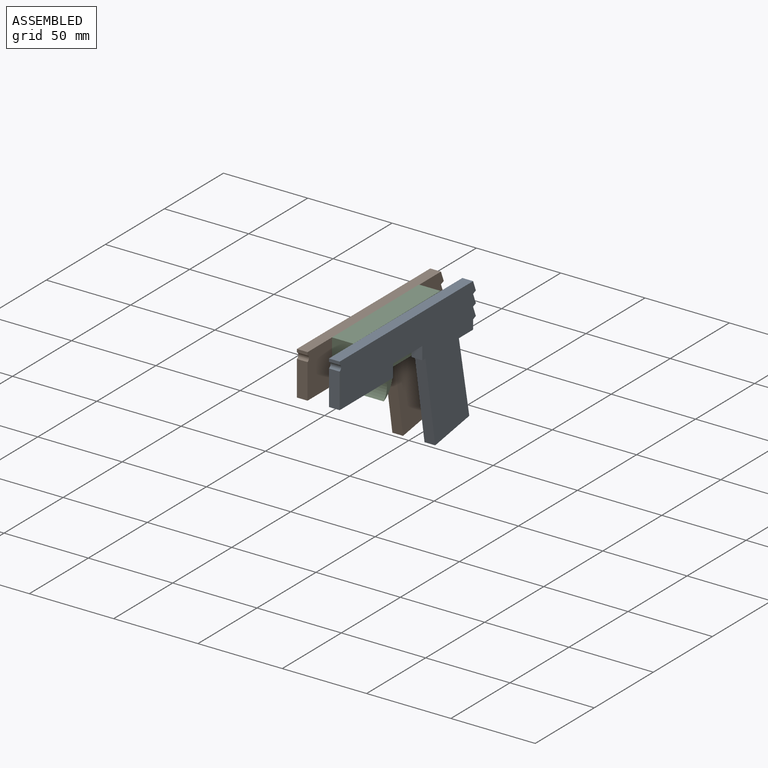
[diagram: assembled view]
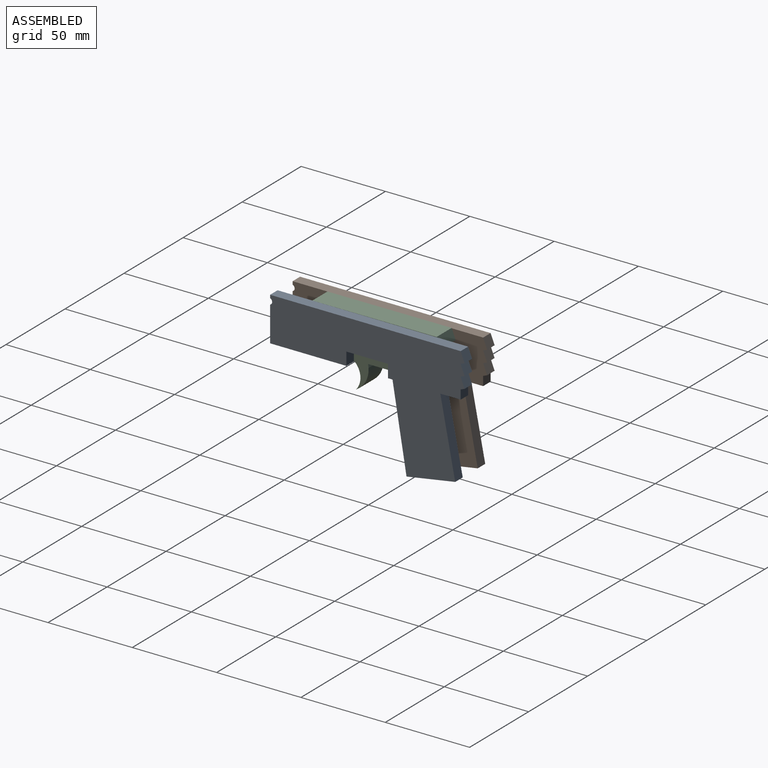
[diagram: assembled view, second angle]
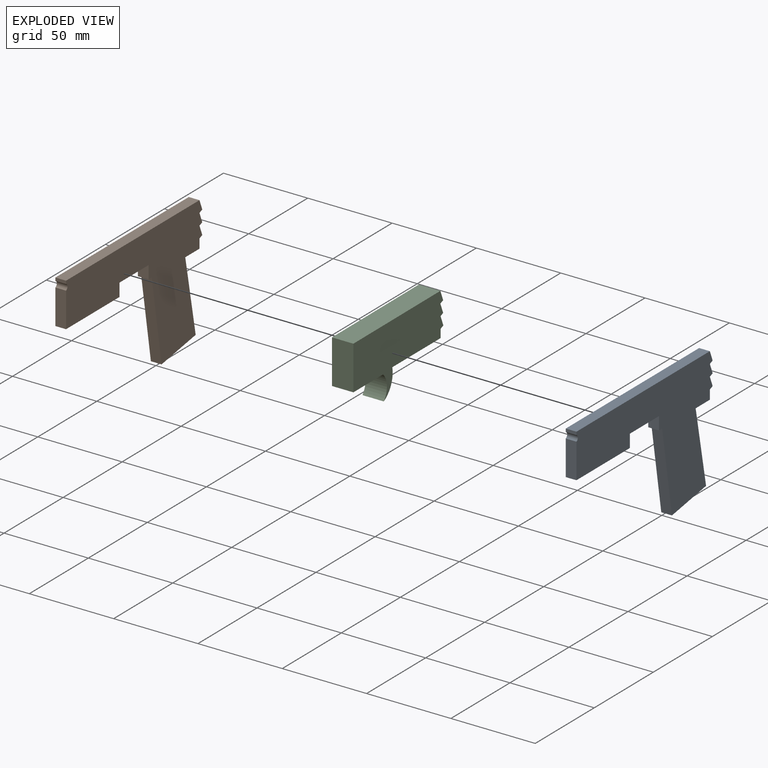
[diagram: exploded view]
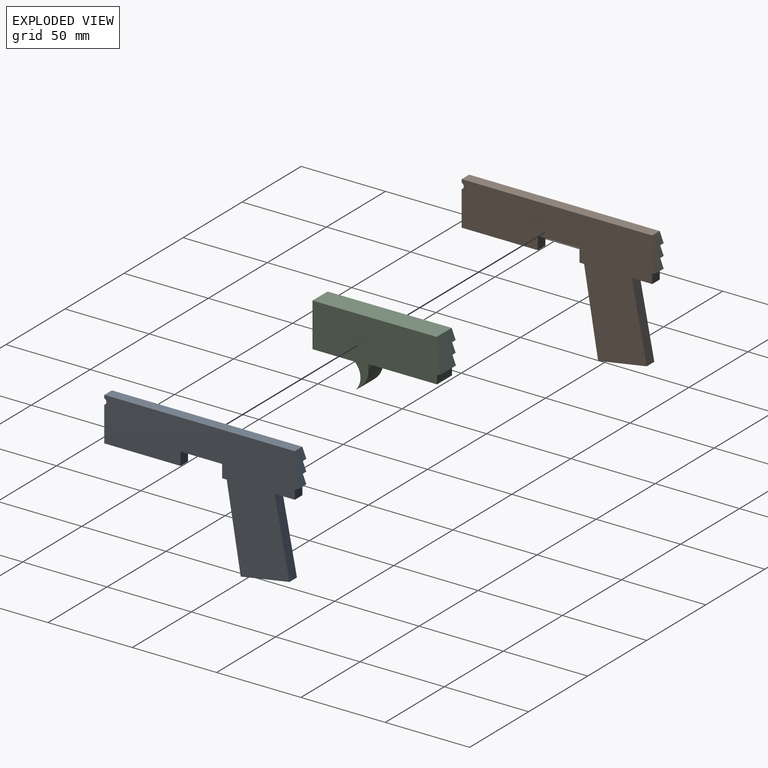
[diagram: exploded view, second angle]
ASSEMBLY  parts=3 mates=2
PART A: 22 faces, bbox 6.4x115.3x75.8 mm
  f0: plane 6.35x2.7mm, normal (0,0,-1), area 17.1mm2, adj f6,f17,f18,f19
  f1: plane 112.98x6.35mm, normal (0,0,1), area 717.4mm2, adj f2,f16,f17,f18
  f2: plane 6.35x1.84mm, normal (0,-1,0), area 11.7mm2, adj f1,f3,f17,f18
  f3: cylinder r=1.87mm len=6.35mm, axis (-1,0,0), area 28.8mm2, adj f2,f4,f17,f18
  f4: plane 20.66x6.35mm, normal (0,-1,0), area 131.2mm2, adj f3,f5,f17,f18
  f5: plane 45.21x6.35mm, normal (0,0,-1), area 287.1mm2, adj f4,f17,f18,f21
  f6: plane 49.76x8.31mm, normal (0,-0.99,-0.16), area 320.4mm2, adj f0,f7,f17,f18
  f7: plane 28.87x6.35mm, normal (0,0.16,-0.99), area 185.9mm2, adj f6,f8,f17,f18
  f8: plane 44.94x8.84mm, normal (0,0.98,0.19), area 290.8mm2, adj f7,f9,f17,f18
  f9: plane 12.05x6.35mm, normal (0,0,-1), area 76.5mm2, adj f8,f10,f17,f18
  f10: plane 6.35x5.49mm, normal (0,1,0), area 34.9mm2, adj f9,f11,f17,f18
  f11: plane 6.35x2.36mm, normal (0,0.37,-0.93), area 16.1mm2, adj f10,f12,f17,f18
  f12: plane 6.35x5.9mm, normal (0,0.93,0.37), area 40.3mm2, adj f11,f13,f17,f18
  f13: plane 6.35x2.36mm, normal (0,0.37,-0.93), area 16.1mm2, adj f12,f14,f17,f18
  f14: plane 6.35x5.9mm, normal (0,0.93,0.37), area 40.3mm2, adj f13,f15,f17,f18
  f15: plane 6.35x2.36mm, normal (0,0.37,-0.93), area 16.1mm2, adj f14,f16,f17,f18
  f16: plane 6.35x5.9mm, normal (0,0.93,0.37), area 40.3mm2, adj f1,f15,f17,f18
  f17: plane 115.34x75.77mm, normal (1,0,0), area 4145.4mm2, adj f0,f1,f2,f3,f4,f5,f6,f7
  f18: plane 115.34x75.77mm, normal (-1,0,0), area 4145.4mm2, adj f0,f1,f2,f3,f4,f5,f6,f7
  f19: plane 7.68x6.35mm, normal (0,-1,0), area 48.8mm2, adj f0,f17,f18,f20
  f20: plane 24.68x6.35mm, normal (0,0,-1), area 156.7mm2, adj f17,f18,f19,f21
  f21: plane 7.68x6.35mm, normal (0,1,0), area 48.8mm2, adj f5,f17,f18,f20
PART B: same geometry as A
PART C: 15 faces, bbox 76.2x12.7x41 mm
  f0: plane 12.7x2.18mm, normal (0.37,0,-0.93), area 29.8mm2, adj f1,f12,f13,f14
  f1: plane 12.7x5.9mm, normal (0.93,0,0.37), area 80.6mm2, adj f0,f2,f13,f14
  f2: plane 12.7x2.36mm, normal (0.37,0,-0.93), area 32.3mm2, adj f1,f3,f13,f14
  f3: plane 12.7x5.9mm, normal (0.93,0,0.37), area 80.6mm2, adj f2,f4,f13,f14
  f4: plane 73.66x12.7mm, normal (0,0,1), area 935.5mm2, adj f3,f5,f13,f14
  f5: plane 26.06x12.7mm, normal (-1,0,0), area 331mm2, adj f4,f6,f13,f14
  f6: plane 25.05x12.7mm, normal (0,0,-1), area 318.1mm2, adj f5,f7,f13,f14
  f7: cylinder r=10.5mm len=14.74mm, axis (0,1,0), area 207.9mm2, adj f6,f8,f13,f14
  f8: cylinder r=14.45mm len=15.61mm, axis (0,1,0), area 233.8mm2, adj f7,f9,f13,f14
  f9: plane 40.85x12.7mm, normal (0,0,-1), area 518.8mm2, adj f8,f10,f13,f14
  f10: plane 12.7x4.94mm, normal (1,0,0), area 62.8mm2, adj f9,f11,f13,f14
  f11: plane 12.7x2.36mm, normal (0.37,0,-0.93), area 32.3mm2, adj f10,f12,f13,f14
  f12: plane 12.7x5.9mm, normal (0.93,0,0.37), area 80.6mm2, adj f0,f11,f13,f14
  f13: plane 76.2x41mm, normal (0,-1,0), area 1975.6mm2, adj f0,f1,f2,f3,f4,f5,f6,f7
  f14: plane 76.2x41mm, normal (0,1,0), area 1975.6mm2, adj f0,f1,f2,f3,f4,f5,f6,f7
PLACE A t=(-40.01,-44.11,16.24)mm
PLACE B t=(-59.06,-44.11,16.24)mm
PLACE C rot(axis=(0,0,1),90deg) t=(-52.71,13.16,23.66)mm
MATE planar C.f14 <-> B.f17  axis (-1,0,0) through (-52.71,-24.33,56.9)mm
MATE planar A.f18 <-> C.f13  axis (-1,0,0) through (-40.01,-24.33,51.82)mm
